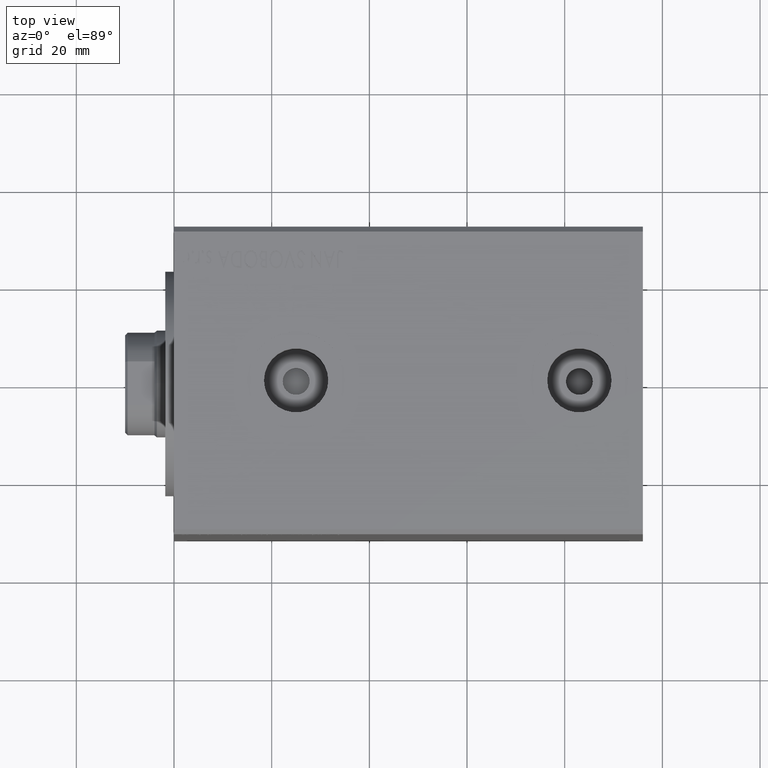
[diagram: clean part render]
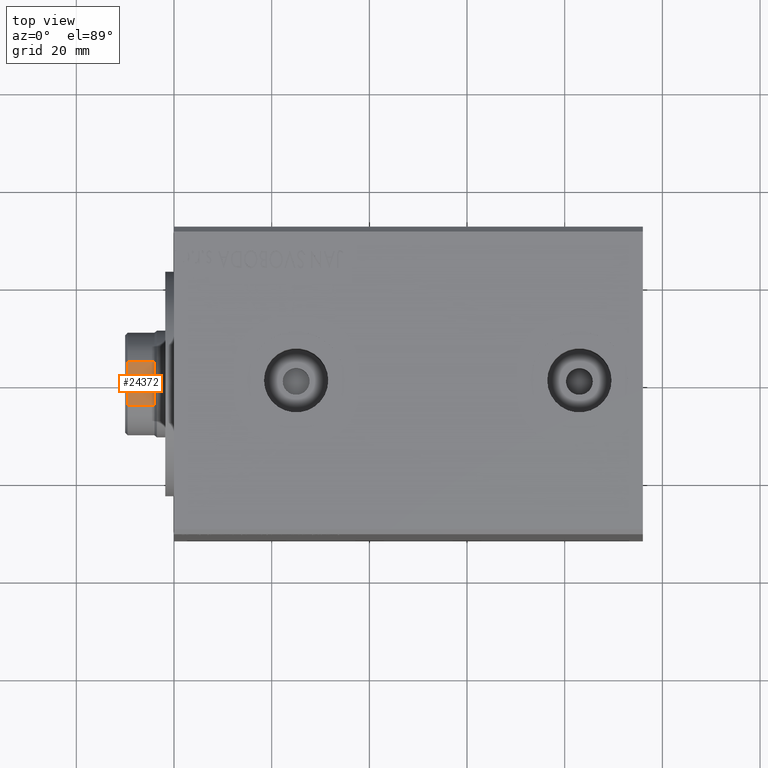
[diagram: same view with one face highlighted and labeled with its STEP entity id]
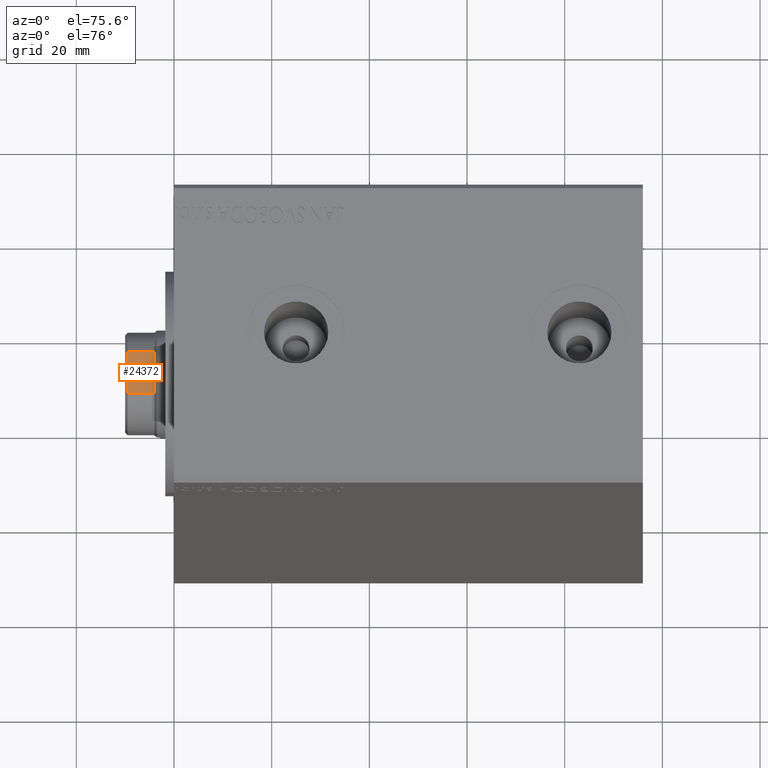
[diagram: same view with one face highlighted and labeled with its STEP entity id]
A machine part, top view. The second image highlights one B-rep face of the part: STEP entity #24372.
A second angle (auxiliary view) of the same face is appended — the face is thin or edge-on in the first view.
In plain terms, the highlighted planar face has unit normal (0, 0, -1).
Its self-contained STEP definition (entity closure, byte-faithful):
#68 = DIRECTION ( 'NONE',  ( 0.000000000000000000, 0.000000000000000000, 1.000000000000000000 ) ) ;
#1731 = DIRECTION ( 'NONE',  ( -0.000000000000000000, -0.000000000000000000, -1.000000000000000000 ) ) ;
#3780 = ORIENTED_EDGE ( 'NONE', *, *, #37199, .T. ) ;
#5793 = LINE ( 'NONE', #11826, #37934 ) ;
#6832 = CARTESIAN_POINT ( 'NONE',  ( 9.500000000000000000, 4.472135954999568952, 90.80000000000001137 ) ) ;
#8626 = CARTESIAN_POINT ( 'NONE',  ( 9.500000000000000000, -4.472135954999568952, 91.30000000000001137 ) ) ;
#10403 = CARTESIAN_POINT ( 'NONE',  ( 9.500000000000000000, -4.472135954999568064, 85.29999999999999716 ) ) ;
#11538 = ORIENTED_EDGE ( 'NONE', *, *, #34114, .F. ) ;
#11826 = CARTESIAN_POINT ( 'NONE',  ( 9.500000000000000000, -4.472135954999568952, 85.29999999999999716 ) ) ;
#14375 = ORIENTED_EDGE ( 'NONE', *, *, #14714, .T. ) ;
#14714 = EDGE_CURVE ( 'NONE', #29225, #34537, #22212, .T. ) ;
#14974 = EDGE_LOOP ( 'NONE', ( #11538, #3780, #14375, #35086 ) ) ;
#18475 = LINE ( 'NONE', #28725, #30960 ) ;
#22212 = LINE ( 'NONE', #8626, #25530 ) ;
#24372 = ADVANCED_FACE ( 'NONE', ( #43959 ), #26353, .F. ) ;
#25530 = VECTOR ( 'NONE', #1731, 1000.000000000000000 ) ;
#26353 = PLANE ( 'NONE',  #33539 ) ;
#27117 = EDGE_CURVE ( 'NONE', #34537, #36858, #5793, .T. ) ;
#27410 = VECTOR ( 'NONE', #37185, 1000.000000000000000 ) ;
#28725 = CARTESIAN_POINT ( 'NONE',  ( 9.500000000000000000, -4.472135954999568952, 90.80000000000001137 ) ) ;
#28929 = CARTESIAN_POINT ( 'NONE',  ( 9.500000000000000000, -4.472135954999568952, 90.80000000000001137 ) ) ;
#29225 = VERTEX_POINT ( 'NONE', #28929 ) ;
#29695 = CARTESIAN_POINT ( 'NONE',  ( 9.500000000000000000, -4.472135954999568952, 91.30000000000001137 ) ) ;
#30054 = LINE ( 'NONE', #40529, #27410 ) ;
#30960 = VECTOR ( 'NONE', #32274, 1000.000000000000000 ) ;
#31252 = VERTEX_POINT ( 'NONE', #6832 ) ;
#32274 = DIRECTION ( 'NONE',  ( 0.000000000000000000, -1.000000000000000000, 0.000000000000000000 ) ) ;
#33539 = AXIS2_PLACEMENT_3D ( 'NONE', #29695, #43292, #68 ) ;
#34114 = EDGE_CURVE ( 'NONE', #31252, #36858, #30054, .T. ) ;
#34537 = VERTEX_POINT ( 'NONE', #10403 ) ;
#35086 = ORIENTED_EDGE ( 'NONE', *, *, #27117, .T. ) ;
#35866 = DIRECTION ( 'NONE',  ( 0.000000000000000000, 1.000000000000000000, 0.000000000000000000 ) ) ;
#36858 = VERTEX_POINT ( 'NONE', #41722 ) ;
#37185 = DIRECTION ( 'NONE',  ( -0.000000000000000000, -0.000000000000000000, -1.000000000000000000 ) ) ;
#37199 = EDGE_CURVE ( 'NONE', #31252, #29225, #18475, .T. ) ;
#37934 = VECTOR ( 'NONE', #35866, 1000.000000000000000 ) ;
#40529 = CARTESIAN_POINT ( 'NONE',  ( 9.500000000000000000, 4.472135954999568952, 91.30000000000001137 ) ) ;
#41722 = CARTESIAN_POINT ( 'NONE',  ( 9.500000000000000000, 4.472135954999568952, 85.29999999999999716 ) ) ;
#43292 = DIRECTION ( 'NONE',  ( -1.000000000000000000, 0.000000000000000000, 0.000000000000000000 ) ) ;
#43959 = FACE_OUTER_BOUND ( 'NONE', #14974, .T. ) ;